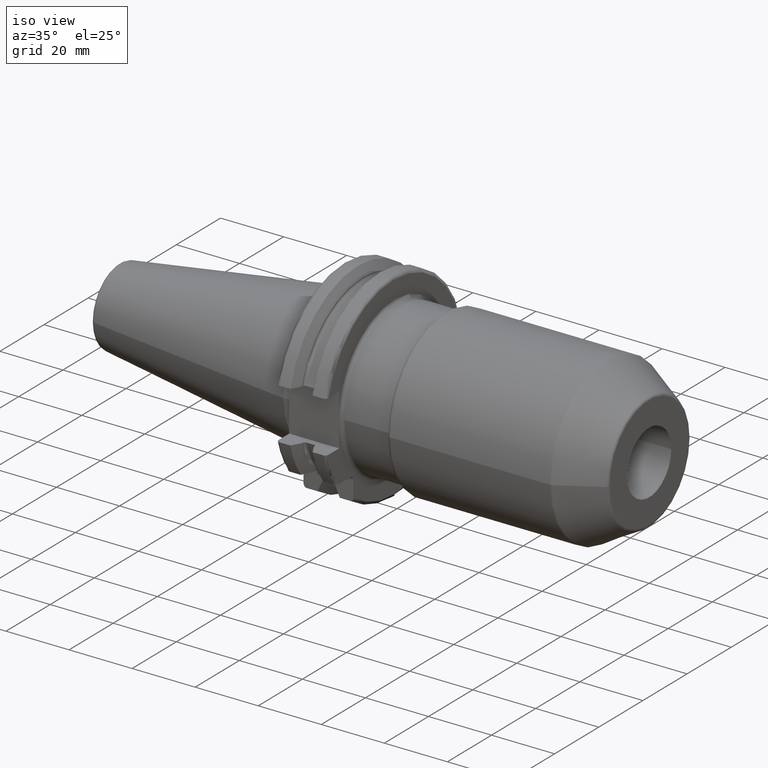
[diagram: clean part render]
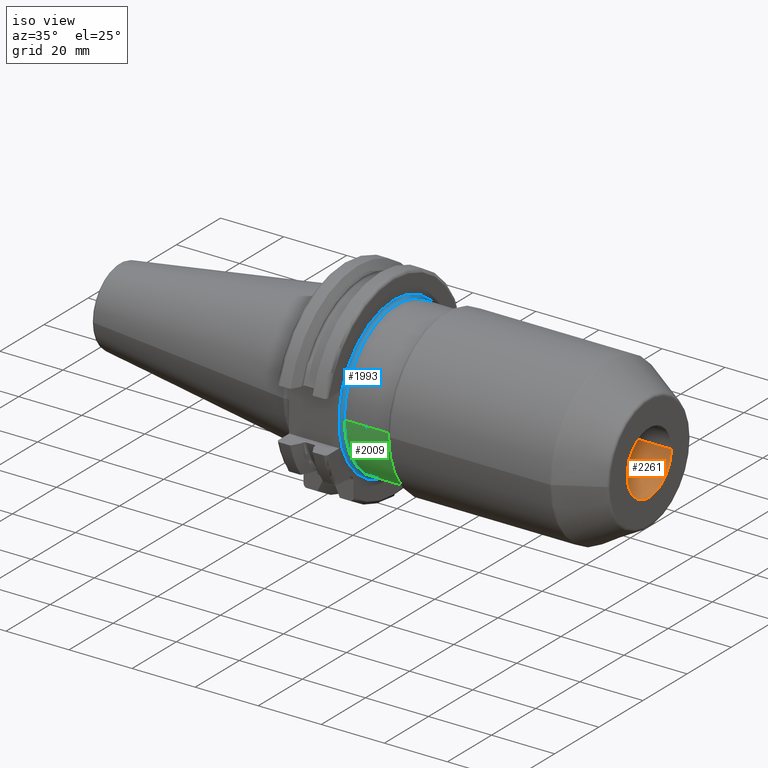
[diagram: same view with three faces highlighted in distinct colors, each labeled with its STEP entity id]
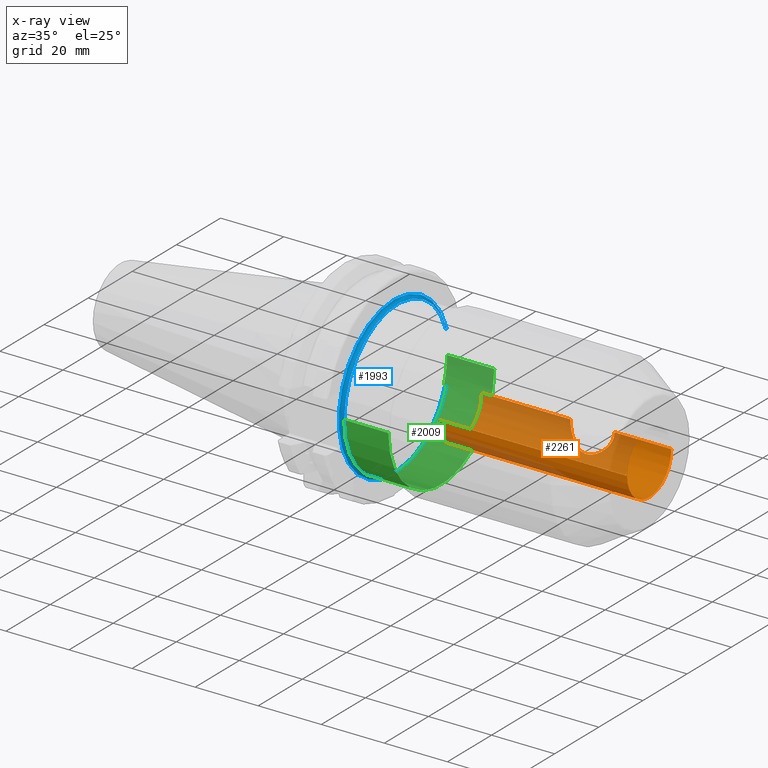
[diagram: x-ray of the same camera — body ghosted, the three highlighted faces saturated]
A machine part, iso view with three faces highlighted in distinct colors.
The next image is the same camera in x-ray (body ghosted, the three faces saturated) — at least one of them is partly hidden behind the body in this view.
Their STEP definitions:

[orange] entity #2261 — the highlighted cylindrical surface (partial cylindrical patch) has radius 10 mm, axis along (1, 0, 0).
#378=CARTESIAN_POINT('',(1.E2,0.E0,0.E0));
#379=DIRECTION('',(1.E0,0.E0,0.E0));
#380=DIRECTION('',(0.E0,-1.E0,0.E0));
#381=AXIS2_PLACEMENT_3D('',#378,#379,#380);
#393=CARTESIAN_POINT('',(6.8E1,1.E1,0.E0));
#416=CARTESIAN_POINT('',(8.2E1,1.E1,0.E0));
#418=CARTESIAN_POINT('',(8.2E1,1.E1,0.E0));
#419=CARTESIAN_POINT('',(8.2E1,1.E1,-3.572538875366E-1));
#420=CARTESIAN_POINT('',(8.194553521600E1,9.961764199530E0,-1.060561499215E0));
#421=CARTESIAN_POINT('',(8.171229754787E1,9.799972708233E0,-2.072822687906E0));
#422=CARTESIAN_POINT('',(8.133953184916E1,9.547446523787E0,-3.027218572855E0));
#423=CARTESIAN_POINT('',(8.082110555136E1,9.209612550860E0,-3.935474893777E0));
#424=CARTESIAN_POINT('',(8.015324655718E1,8.799732583250E0,-4.779688989699E0));
#425=CARTESIAN_POINT('',(7.933331174223E1,8.342126491089E0,-5.535398044898E0));
#426=CARTESIAN_POINT('',(7.839598977368E1,7.890756066377E0,-6.155856830198E0));
#427=CARTESIAN_POINT('',(7.737357717245E1,7.504959061250E0,-6.614554776196E0));
#428=CARTESIAN_POINT('',(7.638805487852E1,7.254342916732E0,-6.884387653375E0));
#429=CARTESIAN_POINT('',(7.543613509905E1,7.134534747792E0,-7.007074592576E0));
#430=CARTESIAN_POINT('',(7.451526167272E1,7.137823779504E0,-7.003764846901E0));
#431=CARTESIAN_POINT('',(7.356829662900E1,7.263109782449E0,-6.875223729946E0));
#432=CARTESIAN_POINT('',(7.258726154194E1,7.517612612734E0,-6.600347438647E0));
#433=CARTESIAN_POINT('',(7.156707563381E1,7.906931677061E0,-6.135286897215E0));
#434=CARTESIAN_POINT('',(7.063719439814E1,8.357786417777E0,-5.511650063302E0));
#435=CARTESIAN_POINT('',(6.982802651572E1,8.810914694493E0,-4.758644070327E0));
#436=CARTESIAN_POINT('',(6.916893726503E1,9.216006855117E0,-3.919836938791E0));
#437=CARTESIAN_POINT('',(6.865683989699E1,9.549895723025E0,-3.018719064315E0));
#438=CARTESIAN_POINT('',(6.828707678278E1,9.800409368798E0,-2.069877725305E0));
#439=CARTESIAN_POINT('',(6.805480260694E1,9.961528749715E0,-1.062043360652E0));
#440=CARTESIAN_POINT('',(6.8E1,1.E1,-3.581968910502E-1));
#441=CARTESIAN_POINT('',(6.8E1,1.E1,0.E0));
#443=DIRECTION('',(-1.E0,0.E0,0.E0));
#444=VECTOR('',#443,1.8E1);
#445=CARTESIAN_POINT('',(1.E2,1.E1,0.E0));
#446=LINE('',#445,#444);
#447=DIRECTION('',(-1.E0,0.E0,0.E0));
#448=VECTOR('',#447,6.01E1);
#449=CARTESIAN_POINT('',(1.E2,-1.E1,0.E0));
#450=LINE('',#449,#448);
#451=DIRECTION('',(-1.E0,0.E0,0.E0));
#452=VECTOR('',#451,2.81E1);
#453=CARTESIAN_POINT('',(6.8E1,1.E1,0.E0));
#454=LINE('',#453,#452);
#455=CARTESIAN_POINT('',(3.99E1,0.E0,0.E0));
#456=DIRECTION('',(-1.E0,0.E0,0.E0));
#457=DIRECTION('',(0.E0,1.E0,0.E0));
#458=AXIS2_PLACEMENT_3D('',#455,#456,#457);
#1660=CARTESIAN_POINT('',(3.99E1,1.E1,0.E0));
#1661=CARTESIAN_POINT('',(3.99E1,-1.E1,0.E0));
#1662=VERTEX_POINT('',#1660);
#1663=VERTEX_POINT('',#1661);
#1664=CARTESIAN_POINT('',(1.E2,1.E1,0.E0));
#1665=CARTESIAN_POINT('',(1.E2,-1.E1,0.E0));
#1666=VERTEX_POINT('',#1664);
#1667=VERTEX_POINT('',#1665);
#1695=VERTEX_POINT('',#393);
#1696=VERTEX_POINT('',#416);
#2247=CARTESIAN_POINT('',(3.6895E1,0.E0,0.E0));
#2248=DIRECTION('',(1.E0,0.E0,0.E0));
#2249=DIRECTION('',(0.E0,-1.E0,0.E0));
#2250=AXIS2_PLACEMENT_3D('',#2247,#2248,#2249);
#2251=CYLINDRICAL_SURFACE('',#2250,1.E1);
#2252=ORIENTED_EDGE('',*,*,#2108,.F.);
#2253=ORIENTED_EDGE('',*,*,#2242,.F.);
#2254=ORIENTED_EDGE('',*,*,#2224,.F.);
#2255=ORIENTED_EDGE('',*,*,#2239,.T.);
#2257=ORIENTED_EDGE('',*,*,#2256,.F.);
#2258=ORIENTED_EDGE('',*,*,#2235,.F.);
#2259=EDGE_LOOP('',(#2252,#2253,#2254,#2255,#2257,#2258));
#2260=FACE_OUTER_BOUND('',#2259,.F.);
#2261=ADVANCED_FACE('',(#2260),#2251,.F.);
#382=CIRCLE('',#381,1.E1);
#442=B_SPLINE_CURVE_WITH_KNOTS('',3,(#418,#419,#420,#421,#422,#423,#424,#425,
#426,#427,#428,#429,#430,#431,#432,#433,#434,#435,#436,#437,#438,#439,#440,
#441),.UNSPECIFIED.,.F.,.F.,(4,1,1,1,1,1,1,1,1,1,1,1,1,1,1,1,1,1,1,1,1,4),(0.E0,
4.761904761905E-2,9.523809523810E-2,1.428571428571E-1,1.904761904762E-1,
2.380952380952E-1,2.857142857143E-1,3.333333333333E-1,3.809523809524E-1,
4.285714285714E-1,4.761904761905E-1,5.238095238095E-1,5.714285714286E-1,
6.190476190476E-1,6.666666666667E-1,7.142857142857E-1,7.619047619048E-1,
8.095238095238E-1,8.571428571429E-1,9.047619047619E-1,9.523809523810E-1,1.E0),
.UNSPECIFIED.);
#459=CIRCLE('',#458,1.E1);
#2108=EDGE_CURVE('',#1696,#1695,#442,.T.);
#2224=EDGE_CURVE('',#1667,#1666,#382,.T.);
#2235=EDGE_CURVE('',#1695,#1662,#454,.T.);
#2239=EDGE_CURVE('',#1667,#1663,#450,.T.);
#2242=EDGE_CURVE('',#1666,#1696,#446,.T.);
#2256=EDGE_CURVE('',#1662,#1663,#459,.T.);

[blue] entity #1993 — the highlighted toroidal blend (fillet) surface has major radius 25 mm and minor (blend) radius 1 mm.
#144=CARTESIAN_POINT('',(2.005E1,0.E0,0.E0));
#145=DIRECTION('',(1.E0,0.E0,0.E0));
#146=DIRECTION('',(0.E0,9.413255281782E-1,3.375E-1));
#147=AXIS2_PLACEMENT_3D('',#144,#145,#146);
#158=CARTESIAN_POINT('',(2.005E1,2.259181267628E1,-8.1E0));
#159=CARTESIAN_POINT('',(1.996471559679E1,2.259181267628E1,-8.1E0));
#160=CARTESIAN_POINT('',(1.979872990014E1,2.261366886611E1,-8.1E0));
#161=CARTESIAN_POINT('',(1.954992991274E1,2.271974591536E1,-8.1E0));
#162=CARTESIAN_POINT('',(1.934199978608E1,2.288730200111E1,-8.1E0));
#163=CARTESIAN_POINT('',(1.917951445041E1,2.310525621382E1,-8.1E0));
#164=CARTESIAN_POINT('',(1.907329022132E1,2.337183787163E1,-8.1E0));
#165=CARTESIAN_POINT('',(1.905E1,2.355574199375E1,-8.1E0));
#166=CARTESIAN_POINT('',(1.905E1,2.365142701826E1,-8.1E0));
#168=CARTESIAN_POINT('',(1.905E1,-2.484999510014E1,-2.735148022499E0));
#169=CARTESIAN_POINT('',(1.905E1,-2.484999510014E1,-2.126181775242E0));
#170=CARTESIAN_POINT('',(1.906190710182E1,-2.485000071437E1,
-9.085740700701E-1));
#171=CARTESIAN_POINT('',(1.906190709156E1,-2.485000484948E1,9.095156455745E-1));
#172=CARTESIAN_POINT('',(1.905E1,-2.484998820829E1,2.123360520513E0));
#173=CARTESIAN_POINT('',(1.905E1,-2.484998820829E1,2.732326333782E0));
#175=CARTESIAN_POINT('',(1.905E1,2.365142701826E1,8.1E0));
#176=CARTESIAN_POINT('',(1.905E1,2.355574199375E1,8.1E0));
#177=CARTESIAN_POINT('',(1.907329022132E1,2.337183787163E1,8.1E0));
#178=CARTESIAN_POINT('',(1.917951445041E1,2.310525621382E1,8.1E0));
#179=CARTESIAN_POINT('',(1.934199978608E1,2.288730200111E1,8.1E0));
#180=CARTESIAN_POINT('',(1.954992991274E1,2.271974591536E1,8.1E0));
#181=CARTESIAN_POINT('',(1.979872990014E1,2.261366886611E1,8.1E0));
#182=CARTESIAN_POINT('',(1.996471559679E1,2.259181267628E1,8.1E0));
#183=CARTESIAN_POINT('',(2.005E1,2.259181267628E1,8.1E0));
#185=CARTESIAN_POINT('',(2.005E1,0.E0,0.E0));
#186=DIRECTION('',(1.E0,0.E0,0.E0));
#187=DIRECTION('',(0.E0,-1.E0,0.E0));
#188=AXIS2_PLACEMENT_3D('',#185,#186,#187);
#477=CARTESIAN_POINT('',(1.905E1,0.E0,0.E0));
#478=DIRECTION('',(1.E0,0.E0,0.E0));
#479=DIRECTION('',(0.E0,-9.939921470396E-1,-1.094514121586E-1));
#480=AXIS2_PLACEMENT_3D('',#477,#478,#479);
#510=CARTESIAN_POINT('',(1.905E1,0.E0,0.E0));
#511=DIRECTION('',(1.E0,0.E0,0.E0));
#512=DIRECTION('',(0.E0,9.460570807303E-1,3.24E-1));
#513=AXIS2_PLACEMENT_3D('',#510,#511,#512);
#1701=CARTESIAN_POINT('',(1.905E1,-2.484999510014E1,-2.735148022499E0));
#1702=VERTEX_POINT('',#1701);
#1703=CARTESIAN_POINT('',(1.905E1,-2.484998820829E1,2.732326333782E0));
#1704=VERTEX_POINT('',#1703);
#1709=CARTESIAN_POINT('',(1.905E1,2.365142701826E1,8.1E0));
#1710=VERTEX_POINT('',#1709);
#1711=CARTESIAN_POINT('',(1.905E1,2.365142701826E1,-8.1E0));
#1712=VERTEX_POINT('',#1711);
#1713=VERTEX_POINT('',#183);
#1714=VERTEX_POINT('',#158);
#1717=CARTESIAN_POINT('',(2.005E1,-2.4E1,0.E0));
#1718=VERTEX_POINT('',#1717);
#1974=CARTESIAN_POINT('',(2.005E1,0.E0,0.E0));
#1975=DIRECTION('',(1.E0,0.E0,0.E0));
#1976=DIRECTION('',(0.E0,1.485959642860E-3,-9.999988959614E-1));
#1977=AXIS2_PLACEMENT_3D('',#1974,#1975,#1976);
#1978=TOROIDAL_SURFACE('',#1977,2.5E1,1.E0);
#1979=ORIENTED_EDGE('',*,*,#1961,.T.);
#1981=ORIENTED_EDGE('',*,*,#1980,.T.);
#1983=ORIENTED_EDGE('',*,*,#1982,.T.);
#1985=ORIENTED_EDGE('',*,*,#1984,.F.);
#1987=ORIENTED_EDGE('',*,*,#1986,.T.);
#1989=ORIENTED_EDGE('',*,*,#1988,.F.);
#1990=ORIENTED_EDGE('',*,*,#1924,.T.);
#1991=EDGE_LOOP('',(#1979,#1981,#1983,#1985,#1987,#1989,#1990));
#1992=FACE_OUTER_BOUND('',#1991,.F.);
#1993=ADVANCED_FACE('',(#1992),#1978,.F.);
#148=CIRCLE('',#147,2.4E1);
#167=B_SPLINE_CURVE_WITH_KNOTS('',3,(#158,#159,#160,#161,#162,#163,#164,#165,
#166),.UNSPECIFIED.,.F.,.F.,(4,1,1,1,1,1,4),(0.E0,1.666666666667E-1,
3.333333333333E-1,5.E-1,6.666666666667E-1,8.333333333333E-1,1.E0),
.UNSPECIFIED.);
#174=B_SPLINE_CURVE_WITH_KNOTS('',3,(#168,#169,#170,#171,#172,#173),
.UNSPECIFIED.,.F.,.F.,(4,1,1,4),(0.E0,3.333333333333E-1,6.666666666667E-1,1.E0),
.UNSPECIFIED.);
#184=B_SPLINE_CURVE_WITH_KNOTS('',3,(#175,#176,#177,#178,#179,#180,#181,#182,
#183),.UNSPECIFIED.,.F.,.F.,(4,1,1,1,1,1,4),(0.E0,1.666666666667E-1,
3.333333333333E-1,5.E-1,6.666666666667E-1,8.333333333333E-1,1.E0),
.UNSPECIFIED.);
#189=CIRCLE('',#188,2.4E1);
#481=CIRCLE('',#480,2.5E1);
#514=CIRCLE('',#513,2.5E1);
#1924=EDGE_CURVE('',#1710,#1713,#184,.T.);
#1961=EDGE_CURVE('',#1713,#1718,#148,.T.);
#1980=EDGE_CURVE('',#1718,#1714,#189,.T.);
#1982=EDGE_CURVE('',#1714,#1712,#167,.T.);
#1984=EDGE_CURVE('',#1702,#1712,#481,.T.);
#1986=EDGE_CURVE('',#1702,#1704,#174,.T.);
#1988=EDGE_CURVE('',#1710,#1704,#514,.T.);

[green] entity #2009 — the highlighted cylindrical surface (partial cylindrical patch) has radius 24 mm, axis along (1, 0, 0).
#130=CARTESIAN_POINT('',(1.905E1,0.E0,0.E0));
#131=DIRECTION('',(-1.E0,0.E0,0.E0));
#132=DIRECTION('',(0.E0,1.E0,0.E0));
#133=AXIS2_PLACEMENT_3D('',#130,#131,#132);
#158=CARTESIAN_POINT('',(2.005E1,2.259181267628E1,-8.1E0));
#185=CARTESIAN_POINT('',(2.005E1,0.E0,0.E0));
#186=DIRECTION('',(1.E0,0.E0,0.E0));
#187=DIRECTION('',(0.E0,-1.E0,0.E0));
#188=AXIS2_PLACEMENT_3D('',#185,#186,#187);
#190=DIRECTION('',(-9.999999998670E-1,2.327311676399E-10,-1.630883666972E-5));
#191=VECTOR('',#190,1.400000000186E1);
#192=CARTESIAN_POINT('',(3.405E1,-2.4E1,3.265049177774E-13));
#193=LINE('',#192,#191);
#194=CARTESIAN_POINT('',(3.405E1,0.E0,0.E0));
#195=DIRECTION('',(1.E0,0.E0,0.E0));
#196=DIRECTION('',(0.E0,-1.E0,0.E0));
#197=AXIS2_PLACEMENT_3D('',#194,#195,#196);
#199=DIRECTION('',(-1.E0,0.E0,2.194799716115E-14));
#200=VECTOR('',#199,1.5E1);
#201=CARTESIAN_POINT('',(3.405E1,2.4E1,-3.272605225386E-13));
#202=LINE('',#201,#200);
#203=DIRECTION('',(-1.E0,0.E0,0.E0));
#204=VECTOR('',#203,1.E0);
#205=CARTESIAN_POINT('',(2.005E1,2.259181267628E1,-8.1E0));
#206=LINE('',#205,#204);
#1707=CARTESIAN_POINT('',(1.905E1,2.259181267628E1,-8.1E0));
#1708=VERTEX_POINT('',#1707);
#1714=VERTEX_POINT('',#158);
#1717=CARTESIAN_POINT('',(2.005E1,-2.4E1,0.E0));
#1718=VERTEX_POINT('',#1717);
#1719=CARTESIAN_POINT('',(3.405E1,-2.4E1,0.E0));
#1720=CARTESIAN_POINT('',(3.405E1,2.4E1,0.E0));
#1721=VERTEX_POINT('',#1719);
#1722=VERTEX_POINT('',#1720);
#1723=CARTESIAN_POINT('',(1.905E1,2.4E1,0.E0));
#1724=VERTEX_POINT('',#1723);
#1994=CARTESIAN_POINT('',(1.50025E1,0.E0,0.E0));
#1995=DIRECTION('',(1.E0,0.E0,0.E0));
#1996=DIRECTION('',(0.E0,-1.E0,0.E0));
#1997=AXIS2_PLACEMENT_3D('',#1994,#1995,#1996);
#1998=CYLINDRICAL_SURFACE('',#1997,2.4E1);
#1999=ORIENTED_EDGE('',*,*,#1980,.F.);
#2000=ORIENTED_EDGE('',*,*,#1969,.F.);
#2002=ORIENTED_EDGE('',*,*,#2001,.T.);
#2003=ORIENTED_EDGE('',*,*,#1965,.T.);
#2004=ORIENTED_EDGE('',*,*,#1909,.T.);
#2006=ORIENTED_EDGE('',*,*,#2005,.F.);
#2007=EDGE_LOOP('',(#1999,#2000,#2002,#2003,#2004,#2006));
#2008=FACE_OUTER_BOUND('',#2007,.F.);
#2009=ADVANCED_FACE('',(#2008),#1998,.T.);
#134=CIRCLE('',#133,2.4E1);
#189=CIRCLE('',#188,2.4E1);
#198=CIRCLE('',#197,2.4E1);
#1909=EDGE_CURVE('',#1724,#1708,#134,.T.);
#1965=EDGE_CURVE('',#1722,#1724,#202,.T.);
#1969=EDGE_CURVE('',#1721,#1718,#193,.T.);
#1980=EDGE_CURVE('',#1718,#1714,#189,.T.);
#2001=EDGE_CURVE('',#1721,#1722,#198,.T.);
#2005=EDGE_CURVE('',#1714,#1708,#206,.T.);